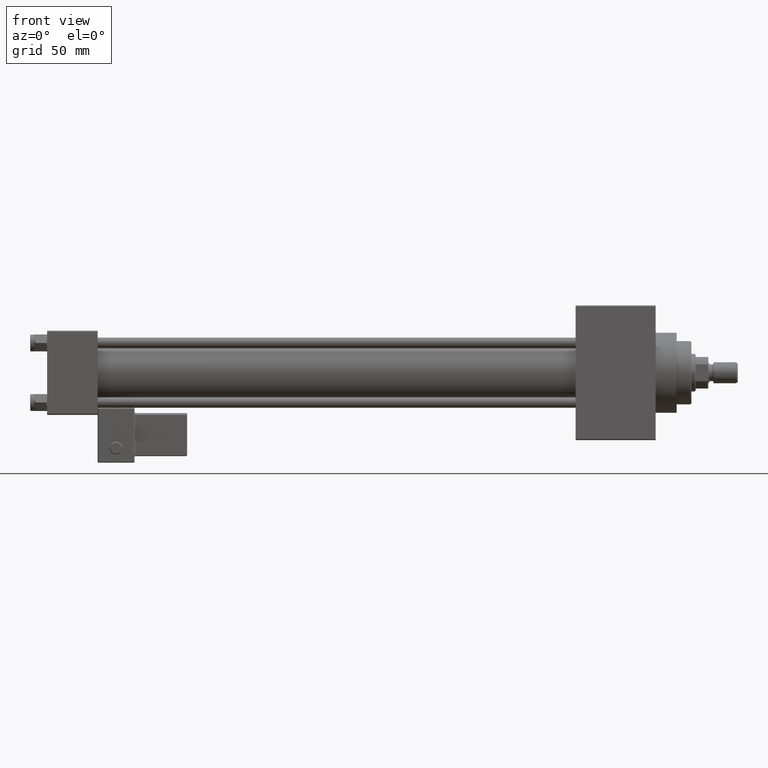
[diagram: clean part render]
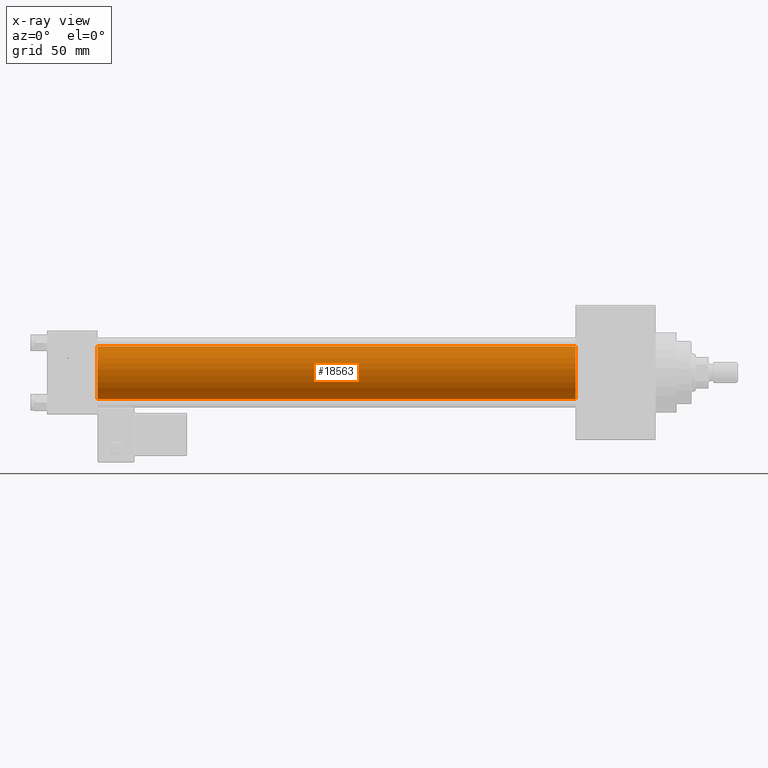
[diagram: x-ray — body ghosted, one internal face saturated and labeled with its STEP entity id]
A machine part, front view, then the same camera in x-ray: the body is ghosted and one INTERNAL B-rep face — a face not visible from any outside direction — is saturated and labeled: STEP entity #18563.
In plain terms, the highlighted cylindrical surface (edge-blend (fillet) strip) has radius 12.5 mm, axis along (-1, -0, -0).
Its self-contained STEP definition (entity closure, byte-faithful):
#72 = DIRECTION ( 'NONE',  ( 1.000000000000000000, 0.000000000000000000, 0.000000000000000000 ) ) ;
#1103 = DIRECTION ( 'NONE',  ( -1.000000000000000000, -0.000000000000000000, -0.000000000000000000 ) ) ;
#4265 = CARTESIAN_POINT ( 'NONE',  ( 251.0000000000000000, -1.071276715031019909E-15, -12.49999999999999645 ) ) ;
#5072 = DIRECTION ( 'NONE',  ( 1.000000000000000000, 0.000000000000000000, 0.000000000000000000 ) ) ;
#5313 = VERTEX_POINT ( 'NONE', #34782 ) ;
#9112 = CARTESIAN_POINT ( 'NONE',  ( 24.00000000000000000, -2.602085213965210642E-15, 12.49999999999999645 ) ) ;
#9268 = DIRECTION ( 'NONE',  ( -1.000000000000000000, -0.000000000000000000, -0.000000000000000000 ) ) ;
#9784 = AXIS2_PLACEMENT_3D ( 'NONE', #36487, #5072, #16318 ) ;
#13773 = ORIENTED_EDGE ( 'NONE', *, *, #36956, .T. ) ;
#14186 = ORIENTED_EDGE ( 'NONE', *, *, #24700, .F. ) ;
#15991 = DIRECTION ( 'NONE',  ( 0.000000000000000000, 0.000000000000000000, -1.000000000000000000 ) ) ;
#16318 = DIRECTION ( 'NONE',  ( 0.000000000000000000, 0.000000000000000000, -1.000000000000000000 ) ) ;
#16828 = LINE ( 'NONE', #28891, #43263 ) ;
#17916 = VERTEX_POINT ( 'NONE', #42794 ) ;
#18135 = CARTESIAN_POINT ( 'NONE',  ( 251.0000000000000000, -2.602085213965210642E-15, 0.000000000000000000 ) ) ;
#18563 = ADVANCED_FACE ( 'NONE', ( #25728 ), #29148, .F. ) ;
#19589 = EDGE_CURVE ( 'NONE', #5313, #17916, #44293, .T. ) ;
#21953 = AXIS2_PLACEMENT_3D ( 'NONE', #30936, #72, #15991 ) ;
#24700 = EDGE_CURVE ( 'NONE', #49937, #17916, #50725, .T. ) ;
#24770 = EDGE_LOOP ( 'NONE', ( #13773, #29795, #14186, #45404 ) ) ;
#25728 = FACE_OUTER_BOUND ( 'NONE', #24770, .T. ) ;
#25786 = EDGE_CURVE ( 'NONE', #47094, #49937, #16828, .T. ) ;
#26142 = CIRCLE ( 'NONE', #21953, 12.49999999999999645 ) ;
#28891 = CARTESIAN_POINT ( 'NONE',  ( 251.0000000000000000, -2.602085213965210642E-15, 12.49999999999999645 ) ) ;
#29148 = CYLINDRICAL_SURFACE ( 'NONE', #45573, 12.49999999999999645 ) ;
#29795 = ORIENTED_EDGE ( 'NONE', *, *, #19589, .T. ) ;
#30936 = CARTESIAN_POINT ( 'NONE',  ( 251.0000000000000000, -2.602085213965210642E-15, 0.000000000000000000 ) ) ;
#34782 = CARTESIAN_POINT ( 'NONE',  ( 251.0000000000000000, -1.071276715031019909E-15, -12.49999999999999645 ) ) ;
#34989 = CARTESIAN_POINT ( 'NONE',  ( 251.0000000000000000, -2.602085213965210642E-15, 12.49999999999999645 ) ) ;
#36487 = CARTESIAN_POINT ( 'NONE',  ( 24.00000000000000000, -2.602085213965210642E-15, 0.000000000000000000 ) ) ;
#36956 = EDGE_CURVE ( 'NONE', #47094, #5313, #26142, .T. ) ;
#41422 = VECTOR ( 'NONE', #1103, 1000.000000000000000 ) ;
#42794 = CARTESIAN_POINT ( 'NONE',  ( 24.00000000000000000, -1.071276715031019909E-15, -12.49999999999999645 ) ) ;
#43263 = VECTOR ( 'NONE', #9268, 1000.000000000000000 ) ;
#44293 = LINE ( 'NONE', #4265, #41422 ) ;
#45116 = DIRECTION ( 'NONE',  ( 0.000000000000000000, 0.000000000000000000, 1.000000000000000000 ) ) ;
#45404 = ORIENTED_EDGE ( 'NONE', *, *, #25786, .F. ) ;
#45573 = AXIS2_PLACEMENT_3D ( 'NONE', #18135, #49811, #45116 ) ;
#47094 = VERTEX_POINT ( 'NONE', #34989 ) ;
#49811 = DIRECTION ( 'NONE',  ( -1.000000000000000000, -0.000000000000000000, -0.000000000000000000 ) ) ;
#49937 = VERTEX_POINT ( 'NONE', #9112 ) ;
#50725 = CIRCLE ( 'NONE', #9784, 12.49999999999999645 ) ;